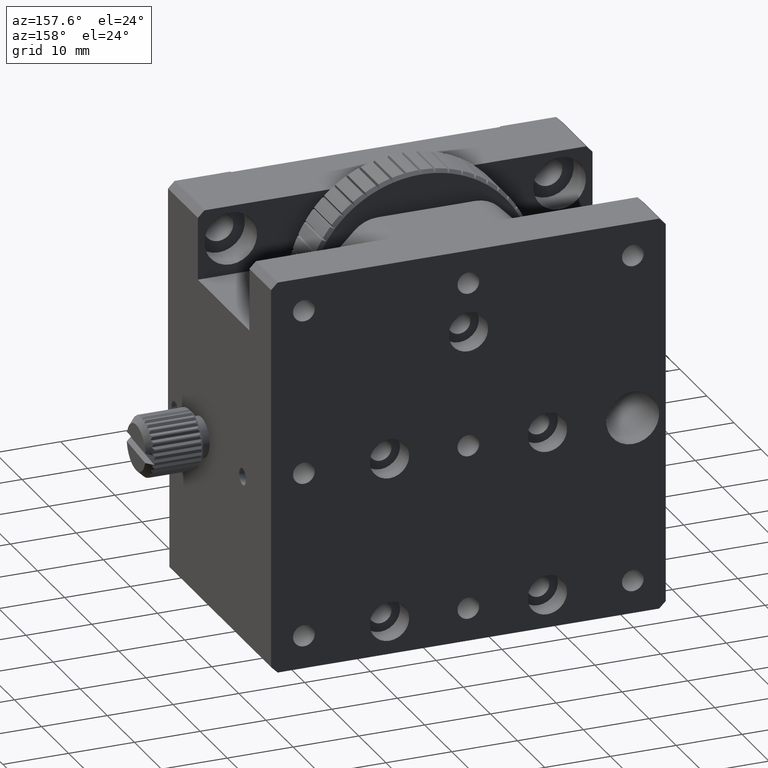
[diagram: clean part render]
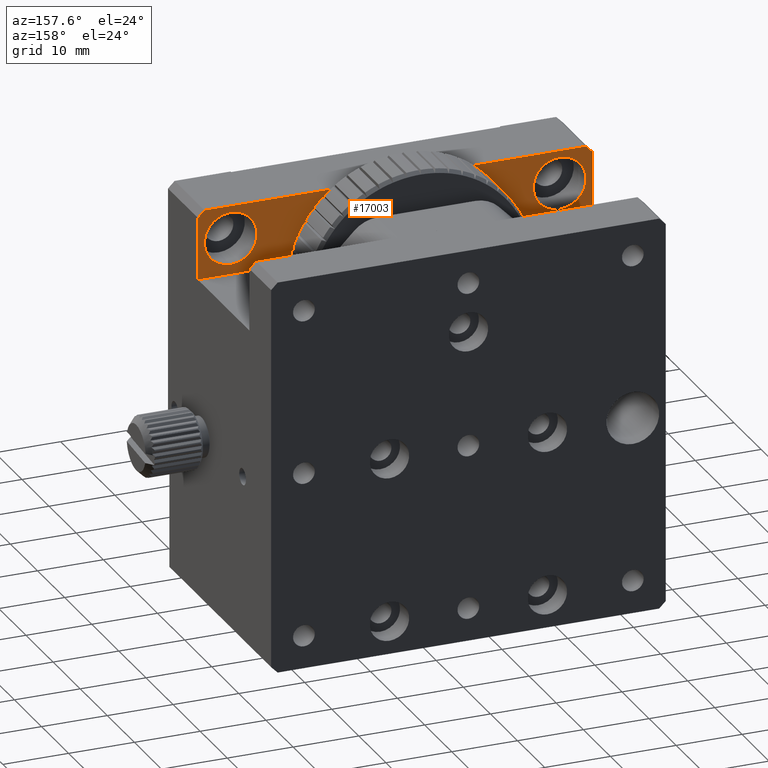
[diagram: same view with one face highlighted and labeled with its STEP entity id]
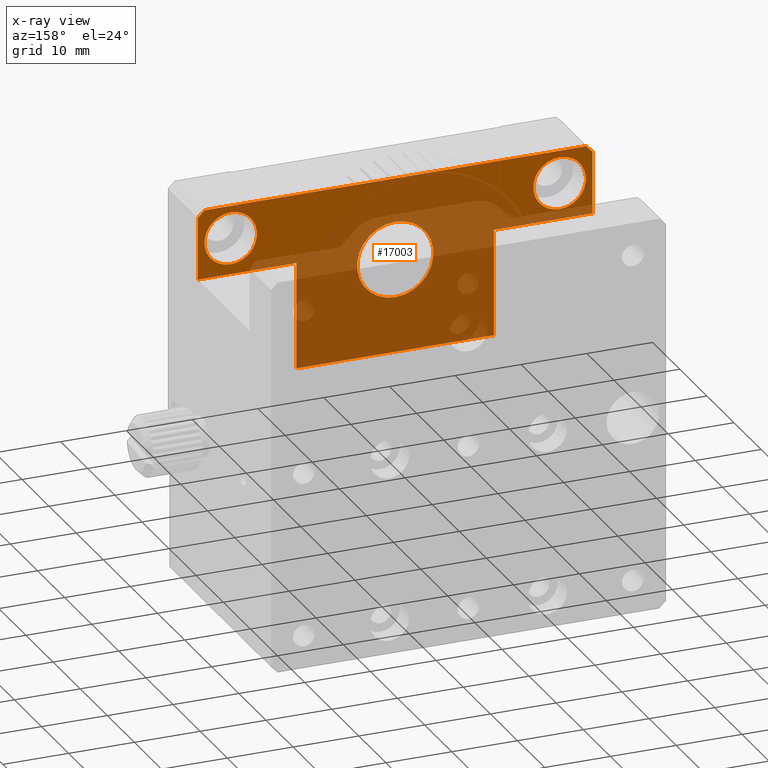
[diagram: x-ray of the same camera — body ghosted, the highlighted face saturated]
A machine part, auxiliary view. The second image highlights one B-rep face of the part: STEP entity #17003.
The next image is the same camera in x-ray: the body ghosted, the highlighted face saturated — about 72% of this face is hidden behind the body in this view.
In plain terms, the highlighted planar face has unit normal (0, -1, 0).
Its self-contained STEP definition (entity closure, byte-faithful):
#106 = CARTESIAN_POINT ( 'NONE',  ( 54.19533304279029551, 21.59151725221546414, 69.10549511013721258 ) ) ;
#160 = DIRECTION ( 'NONE',  ( -0.7071067811865440200, 0.000000000000000000, 0.7071067811865511255 ) ) ;
#353 = DIRECTION ( 'NONE',  ( 0.000000000000000000, 1.000000000000000000, 0.000000000000000000 ) ) ;
#387 = CARTESIAN_POINT ( 'NONE',  ( 9.522127962033604121, 21.59151725221546414, 86.80549511013752806 ) ) ;
#603 = CARTESIAN_POINT ( 'NONE',  ( 34.52212796203357925, 21.59151725221546414, 83.30549511013735753 ) ) ;
#1480 = FACE_BOUND ( 'NONE', #23130, .T. ) ;
#1561 = ORIENTED_EDGE ( 'NONE', *, *, #14495, .T. ) ;
#1870 = DIRECTION ( 'NONE',  ( 6.982962677686266711E-15, 0.000000000000000000, 1.000000000000000000 ) ) ;
#2114 = LINE ( 'NONE', #106, #9786 ) ;
#2134 = EDGE_CURVE ( 'NONE', #11743, #24690, #5883, .T. ) ;
#2173 = CARTESIAN_POINT ( 'NONE',  ( 4.522127962033658299, 21.59151725221546769, 94.80549511013755648 ) ) ;
#2183 = AXIS2_PLACEMENT_3D ( 'NONE', #10464, #353, #8461 ) ;
#2289 = DIRECTION ( 'NONE',  ( -0.7071067811865474617, 0.000000000000000000, -0.7071067811865475727 ) ) ;
#2677 = LINE ( 'NONE', #10904, #10066 ) ;
#3057 = VECTOR ( 'NONE', #14106, 1000.000000000000000 ) ;
#3457 = EDGE_CURVE ( 'NONE', #24986, #4554, #21051, .T. ) ;
#3523 = DIRECTION ( 'NONE',  ( -1.000000000000000000, 0.000000000000000000, 6.982962677686266711E-15 ) ) ;
#3696 = CARTESIAN_POINT ( 'NONE',  ( 19.52212796203347978, 21.59151725221546414, 69.10549511013743995 ) ) ;
#3729 = CARTESIAN_POINT ( 'NONE',  ( 34.52212796203359346, 21.59151725221546414, 85.30549511013735753 ) ) ;
#3874 = DIRECTION ( 'NONE',  ( 6.982962677686266711E-15, 0.000000000000000000, 1.000000000000000000 ) ) ;
#3941 = EDGE_CURVE ( 'NONE', #16484, #16484, #6932, .T. ) ;
#4215 = VECTOR ( 'NONE', #20936, 1000.000000000000000 ) ;
#4485 = EDGE_CURVE ( 'NONE', #20306, #5216, #24431, .T. ) ;
#4554 = VERTEX_POINT ( 'NONE', #26204 ) ;
#4567 = CIRCLE ( 'NONE', #21341, 5.799999999999999822 ) ;
#4638 = EDGE_CURVE ( 'NONE', #5216, #16597, #8239, .T. ) ;
#4644 = DIRECTION ( 'NONE',  ( -6.938893903907222067E-15, 0.000000000000000000, -1.000000000000000000 ) ) ;
#5216 = VERTEX_POINT ( 'NONE', #12368 ) ;
#5591 = EDGE_LOOP ( 'NONE', ( #7505 ) ) ;
#5682 = CARTESIAN_POINT ( 'NONE',  ( 4.522127962033668958, 21.59151725221546414, 95.80549511013755648 ) ) ;
#5883 = LINE ( 'NONE', #3729, #3057 ) ;
#6438 = CARTESIAN_POINT ( 'NONE',  ( 4.522127962033405169, 21.59151725221546414, 58.80549511013755648 ) ) ;
#6727 = ORIENTED_EDGE ( 'NONE', *, *, #2134, .F. ) ;
#6932 = CIRCLE ( 'NONE', #2183, 4.000000000000003553 ) ;
#6950 = VECTOR ( 'NONE', #2289, 1000.000000000000000 ) ;
#7157 = CARTESIAN_POINT ( 'NONE',  ( 19.52212796203360057, 21.59151725221546414, 85.30549511013744279 ) ) ;
#7505 = ORIENTED_EDGE ( 'NONE', *, *, #23404, .F. ) ;
#7970 = EDGE_CURVE ( 'NONE', #24907, #4554, #2677, .T. ) ;
#8043 = CARTESIAN_POINT ( 'NONE',  ( 49.52212796203347978, 21.59151725221546414, 69.10549511013725521 ) ) ;
#8063 = LINE ( 'NONE', #10212, #10501 ) ;
#8239 = LINE ( 'NONE', #16461, #6950 ) ;
#8310 = EDGE_CURVE ( 'NONE', #24907, #16597, #26685, .T. ) ;
#8453 = CARTESIAN_POINT ( 'NONE',  ( 64.52212796203359346, 21.59151725221546769, 85.30549511013713015 ) ) ;
#8461 = DIRECTION ( 'NONE',  ( -6.938893903907222067E-15, 0.000000000000000000, -1.000000000000000000 ) ) ;
#8537 = ORIENTED_EDGE ( 'NONE', *, *, #7970, .F. ) ;
#8664 = LINE ( 'NONE', #12416, #11811 ) ;
#8688 = DIRECTION ( 'NONE',  ( 0.000000000000000000, 1.000000000000000000, 0.000000000000000000 ) ) ;
#9657 = ORIENTED_EDGE ( 'NONE', *, *, #21390, .F. ) ;
#9719 = CARTESIAN_POINT ( 'NONE',  ( 4.522127962033596127, 21.59151725221546414, 85.30549511013755648 ) ) ;
#9786 = VECTOR ( 'NONE', #23390, 1000.000000000000000 ) ;
#10066 = VECTOR ( 'NONE', #13053, 1000.000000000000000 ) ;
#10212 = CARTESIAN_POINT ( 'NONE',  ( 49.52212796203359346, 21.59151725221546414, 85.30549511013724384 ) ) ;
#10464 = CARTESIAN_POINT ( 'NONE',  ( 59.52212796203363609, 21.59151725221546414, 90.80549511013717279 ) ) ;
#10501 = VECTOR ( 'NONE', #3874, 1000.000000000000000 ) ;
#10634 = VERTEX_POINT ( 'NONE', #12240 ) ;
#10720 = DIRECTION ( 'NONE',  ( -7.178166107490237014E-15, 0.000000000000000000, -1.000000000000000000 ) ) ;
#10904 = CARTESIAN_POINT ( 'NONE',  ( 34.52212796203359346, 21.59151725221546414, 85.30549511013735753 ) ) ;
#10949 = CARTESIAN_POINT ( 'NONE',  ( 64.52212796203366452, 21.59151725221546414, 95.80549511013714437 ) ) ;
#11166 = ORIENTED_EDGE ( 'NONE', *, *, #4485, .F. ) ;
#11697 = ORIENTED_EDGE ( 'NONE', *, *, #4638, .F. ) ;
#11732 = FACE_BOUND ( 'NONE', #5591, .T. ) ;
#11743 = VERTEX_POINT ( 'NONE', #15033 ) ;
#11811 = VECTOR ( 'NONE', #160, 999.9999999999998863 ) ;
#12218 = ORIENTED_EDGE ( 'NONE', *, *, #23990, .F. ) ;
#12240 = CARTESIAN_POINT ( 'NONE',  ( 34.52212796203353662, 21.59151725221546414, 77.50549511013734616 ) ) ;
#12368 = CARTESIAN_POINT ( 'NONE',  ( 5.522127962033659188, 21.59151725221546059, 95.80549511013755648 ) ) ;
#12416 = CARTESIAN_POINT ( 'NONE',  ( 64.52212796203366452, 21.59151725221546414, 94.80549511013714437 ) ) ;
#12686 = DIRECTION ( 'NONE',  ( 7.098610909418053587E-15, -0.000000000000000000, 1.000000000000000000 ) ) ;
#12709 = VERTEX_POINT ( 'NONE', #8043 ) ;
#12746 = EDGE_LOOP ( 'NONE', ( #23475 ) ) ;
#13053 = DIRECTION ( 'NONE',  ( 1.000000000000000000, 0.000000000000000000, -7.098610909418053587E-15 ) ) ;
#13805 = CARTESIAN_POINT ( 'NONE',  ( 4.522127962033585469, 21.59151725221546769, 85.30549511013755648 ) ) ;
#13893 = EDGE_CURVE ( 'NONE', #12709, #24986, #2114, .T. ) ;
#14106 = DIRECTION ( 'NONE',  ( 1.000000000000000000, 0.000000000000000000, -7.098610909418053587E-15 ) ) ;
#14472 = AXIS2_PLACEMENT_3D ( 'NONE', #19317, #8688, #4644 ) ;
#14495 = EDGE_CURVE ( 'NONE', #23201, #24690, #21206, .T. ) ;
#14726 = CARTESIAN_POINT ( 'NONE',  ( 59.52212796203360767, 21.59151725221546414, 86.80549511013717279 ) ) ;
#15033 = CARTESIAN_POINT ( 'NONE',  ( 49.52212796203359346, 21.59151725221546414, 85.30549511013724384 ) ) ;
#15299 = DIRECTION ( 'NONE',  ( 0.000000000000000000, 1.000000000000000000, 0.000000000000000000 ) ) ;
#16008 = VECTOR ( 'NONE', #12686, 1000.000000000000000 ) ;
#16461 = CARTESIAN_POINT ( 'NONE',  ( 5.522127962033662740, 21.59151725221546414, 95.80549511013755648 ) ) ;
#16484 = VERTEX_POINT ( 'NONE', #14726 ) ;
#16597 = VERTEX_POINT ( 'NONE', #2173 ) ;
#17003 = ADVANCED_FACE ( 'NONE', ( #11732, #22394, #1480, #20361 ), #22133, .F. ) ;
#17797 = AXIS2_PLACEMENT_3D ( 'NONE', #9719, #26198, #1870 ) ;
#18138 = EDGE_CURVE ( 'NONE', #12709, #11743, #8063, .T. ) ;
#18139 = CARTESIAN_POINT ( 'NONE',  ( 63.52212796203365741, 21.59151725221546769, 95.80549511013714437 ) ) ;
#18527 = CARTESIAN_POINT ( 'NONE',  ( 64.52212796203366452, 21.59151725221546414, 94.80549511013714437 ) ) ;
#19317 = CARTESIAN_POINT ( 'NONE',  ( 9.522127962033630766, 21.59151725221546414, 90.80549511013754227 ) ) ;
#19745 = ORIENTED_EDGE ( 'NONE', *, *, #18138, .F. ) ;
#20306 = VERTEX_POINT ( 'NONE', #18139 ) ;
#20317 = DIRECTION ( 'NONE',  ( 7.076731514225553794E-15, -0.000000000000000000, 1.000000000000000000 ) ) ;
#20361 = FACE_BOUND ( 'NONE', #12746, .T. ) ;
#20936 = DIRECTION ( 'NONE',  ( -7.264269187304127960E-15, -0.000000000000000000, -1.000000000000000000 ) ) ;
#21051 = LINE ( 'NONE', #7157, #16008 ) ;
#21206 = LINE ( 'NONE', #10949, #4215 ) ;
#21341 = AXIS2_PLACEMENT_3D ( 'NONE', #603, #15299, #10720 ) ;
#21354 = CIRCLE ( 'NONE', #14472, 4.000000000000003553 ) ;
#21390 = EDGE_CURVE ( 'NONE', #23201, #20306, #8664, .T. ) ;
#21708 = EDGE_LOOP ( 'NONE', ( #11697, #11166, #9657, #1561, #6727, #19745, #22474, #24625, #8537, #24790 ) ) ;
#22123 = VECTOR ( 'NONE', #20317, 1000.000000000000000 ) ;
#22133 = PLANE ( 'NONE',  #17797 ) ;
#22394 = FACE_OUTER_BOUND ( 'NONE', #21708, .T. ) ;
#22474 = ORIENTED_EDGE ( 'NONE', *, *, #13893, .T. ) ;
#23130 = EDGE_LOOP ( 'NONE', ( #12218 ) ) ;
#23201 = VERTEX_POINT ( 'NONE', #18527 ) ;
#23390 = DIRECTION ( 'NONE',  ( -1.000000000000000000, -0.000000000000000000, 6.982962677686266711E-15 ) ) ;
#23404 = EDGE_CURVE ( 'NONE', #10634, #10634, #4567, .T. ) ;
#23475 = ORIENTED_EDGE ( 'NONE', *, *, #3941, .F. ) ;
#23990 = EDGE_CURVE ( 'NONE', #26576, #26576, #21354, .T. ) ;
#24431 = LINE ( 'NONE', #5682, #25916 ) ;
#24625 = ORIENTED_EDGE ( 'NONE', *, *, #3457, .T. ) ;
#24690 = VERTEX_POINT ( 'NONE', #8453 ) ;
#24790 = ORIENTED_EDGE ( 'NONE', *, *, #8310, .T. ) ;
#24907 = VERTEX_POINT ( 'NONE', #13805 ) ;
#24986 = VERTEX_POINT ( 'NONE', #3696 ) ;
#25916 = VECTOR ( 'NONE', #3523, 1000.000000000000000 ) ;
#26198 = DIRECTION ( 'NONE',  ( 0.000000000000000000, -1.000000000000000000, 0.000000000000000000 ) ) ;
#26204 = CARTESIAN_POINT ( 'NONE',  ( 19.52212796203360057, 21.59151725221546414, 85.30549511013744279 ) ) ;
#26576 = VERTEX_POINT ( 'NONE', #387 ) ;
#26685 = LINE ( 'NONE', #6438, #22123 ) ;